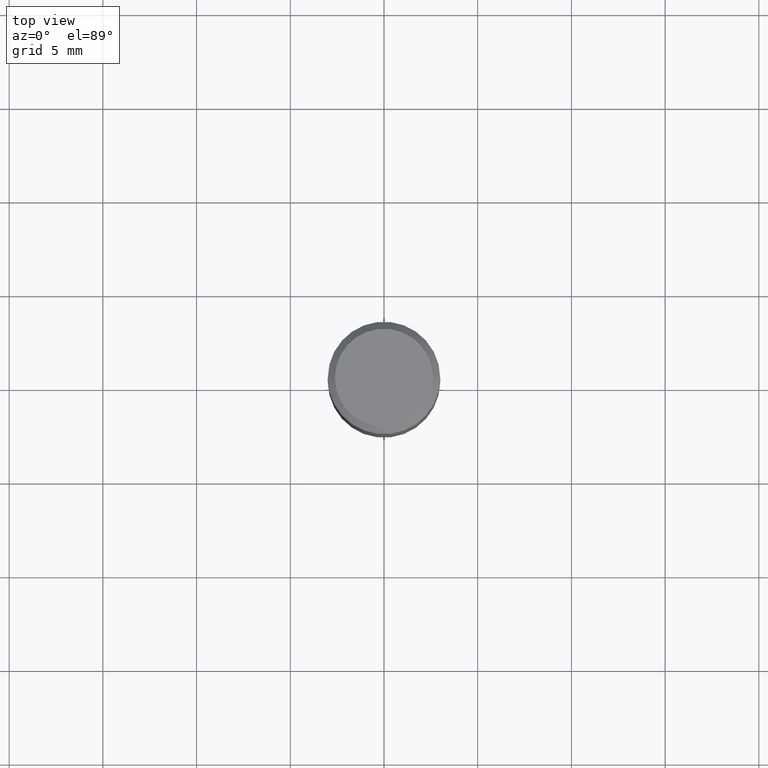
[diagram: clean part render]
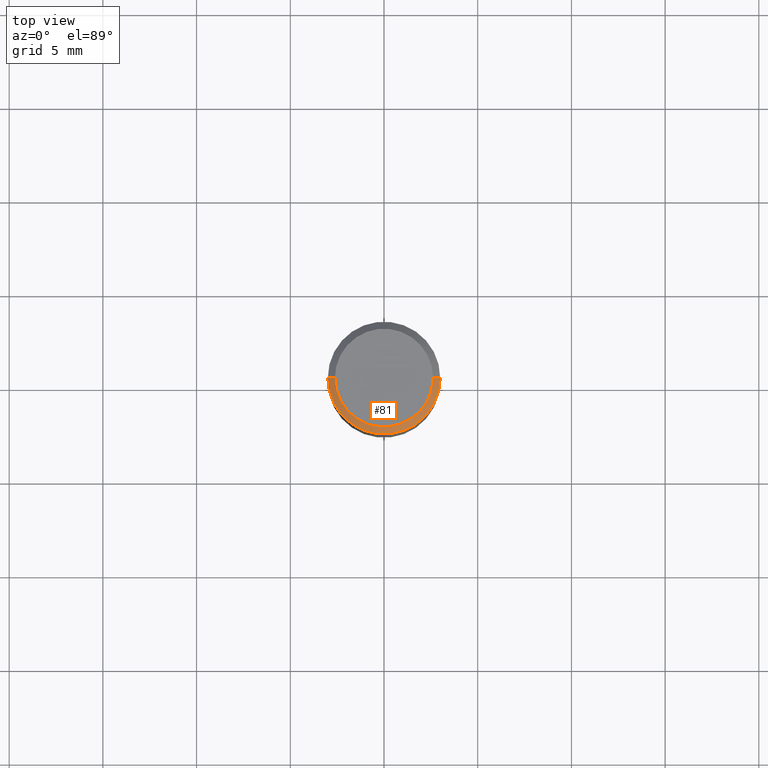
[diagram: same view with one face highlighted and labeled with its STEP entity id]
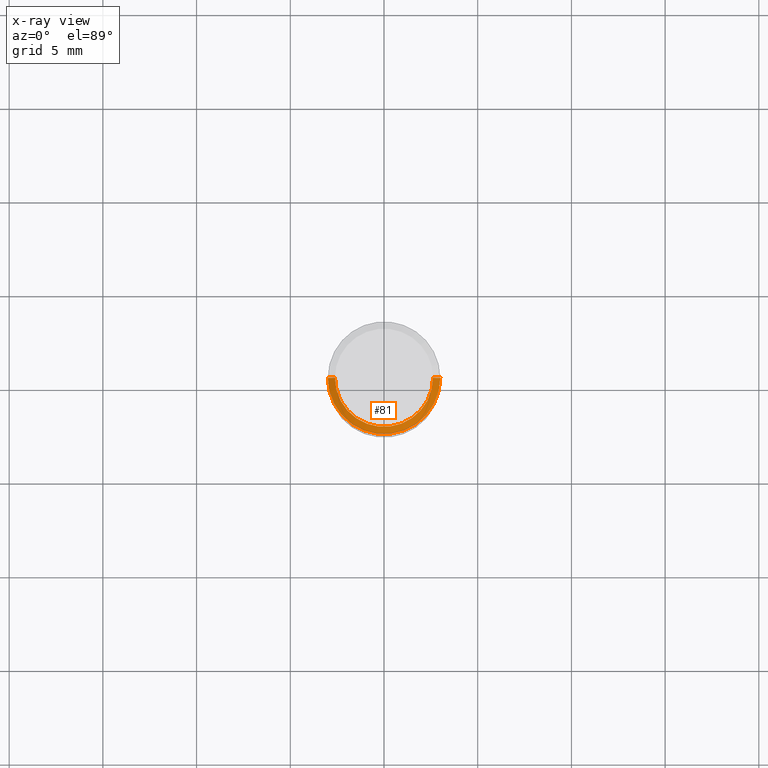
[diagram: x-ray of the same camera — body ghosted, the highlighted face saturated]
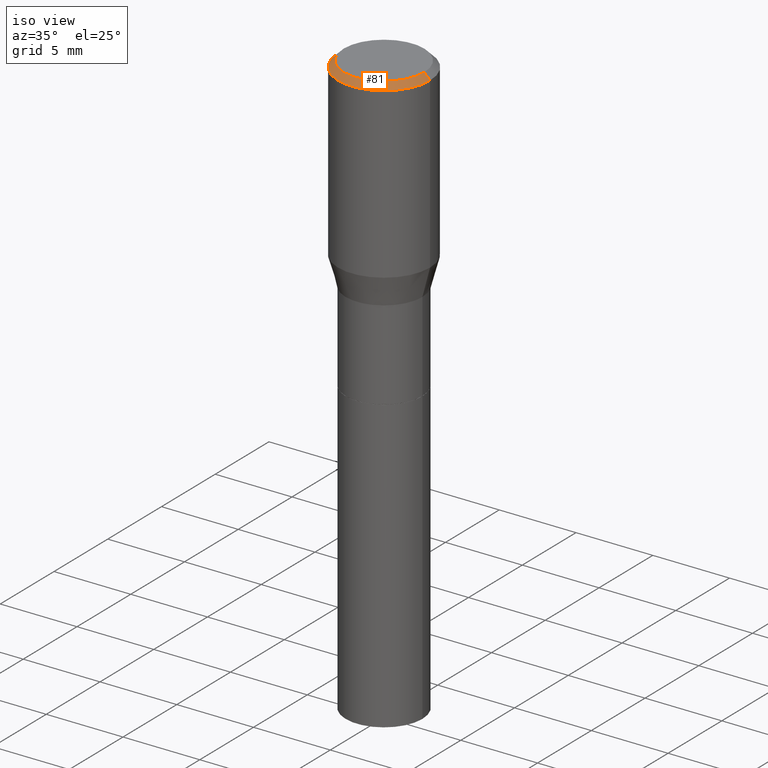
[diagram: same view with one face highlighted and labeled with its STEP entity id]
A machine part, top view. The second image highlights one B-rep face of the part: STEP entity #81.
The next image is the same camera in x-ray: the body ghosted, the highlighted face saturated — about 0% of this face is hidden behind the body in this view.
A second angle (iso view) of the same face is appended — the face is thin or edge-on in the first view.
In plain terms, the highlighted conical surface has half-angle 45 deg.
Its self-contained STEP definition (entity closure, byte-faithful):
#4 = AXIS2_PLACEMENT_3D ( 'NONE', #191, #275, #464 ) ;
#24 = DIRECTION ( 'NONE',  ( -2.445468806185136597E-29, 3.491481338843145583E-15, 1.000000000000000000 ) ) ;
#28 = CARTESIAN_POINT ( 'NONE',  ( -0.1180999999999999966, 2.971177144941290176E-17, -0.01499999999999999944 ) ) ;
#57 = CARTESIAN_POINT ( 'NONE',  ( 0.1180999999999999966, -8.770601123173952432E-16, -0.01499999999999999944 ) ) ;
#59 = DIRECTION ( 'NONE',  ( 1.000000000000000000, -6.982962677686265922E-15, 4.883331232093008327E-29 ) ) ;
#63 = CARTESIAN_POINT ( 'NONE',  ( 0.1180999999999999966, -8.625970336194650129E-16, -0.01499999999999999944 ) ) ;
#81 = ADVANCED_FACE ( 'NONE', ( #225 ), #358, .T. ) ;
#86 = CIRCLE ( 'NONE', #340, 0.1031000000000000111 ) ;
#101 = VERTEX_POINT ( 'NONE', #214 ) ;
#113 = EDGE_CURVE ( 'NONE', #457, #400, #204, .T. ) ;
#137 = VECTOR ( 'NONE', #385, 39.37007874015748143 ) ;
#164 = DIRECTION ( 'NONE',  ( 1.000000000000000000, -6.982962677686266711E-15, 0.000000000000000000 ) ) ;
#182 = CIRCLE ( 'NONE', #444, 0.1180999999999999966 ) ;
#191 = CARTESIAN_POINT ( 'NONE',  ( 3.668203209277705088E-31, -5.237222008264718399E-17, -0.01499999999999999944 ) ) ;
#197 = CARTESIAN_POINT ( 'NONE',  ( -3.565051472193348194E-45, 5.089948665751259239E-31, 1.457819238248526181E-16 ) ) ;
#204 = LINE ( 'NONE', #63, #402 ) ;
#214 = CARTESIAN_POINT ( 'NONE',  ( -0.1031000000000000111, 7.461295621107778410E-16, 1.457819238248475152E-16 ) ) ;
#217 = DIRECTION ( 'NONE',  ( -2.445468806185136597E-29, 3.491481338843145583E-15, 1.000000000000000000 ) ) ;
#222 = EDGE_CURVE ( 'NONE', #101, #457, #86, .T. ) ;
#225 = FACE_OUTER_BOUND ( 'NONE', #465, .T. ) ;
#239 = CARTESIAN_POINT ( 'NONE',  ( -0.1180999999999999966, 7.723156721521009862E-16, -0.01499999999999999944 ) ) ;
#241 = LINE ( 'NONE', #239, #137 ) ;
#248 = DIRECTION ( 'NONE',  ( 0.7071067811865440200, -7.319954787623245001E-15, -0.7071067811865511255 ) ) ;
#254 = CARTESIAN_POINT ( 'NONE',  ( 3.668203209277705088E-31, -5.237222008264718399E-17, -0.01499999999999999944 ) ) ;
#275 = DIRECTION ( 'NONE',  ( 2.445468806185136597E-29, -3.491481338843145583E-15, -1.000000000000000000 ) ) ;
#291 = ORIENTED_EDGE ( 'NONE', *, *, #411, .T. ) ;
#299 = ORIENTED_EDGE ( 'NONE', *, *, #222, .F. ) ;
#315 = ORIENTED_EDGE ( 'NONE', *, *, #362, .T. ) ;
#340 = AXIS2_PLACEMENT_3D ( 'NONE', #197, #24, #59 ) ;
#347 = VERTEX_POINT ( 'NONE', #28 ) ;
#358 = CONICAL_SURFACE ( 'NONE', #4, 0.1180999999999999966, 0.7853981633974432830 ) ;
#362 = EDGE_CURVE ( 'NONE', #101, #347, #241, .T. ) ;
#368 = CARTESIAN_POINT ( 'NONE',  ( 0.1031000000000000111, -7.849571885948547775E-16, 1.457819238248578690E-16 ) ) ;
#385 = DIRECTION ( 'NONE',  ( -0.7071067811865440200, 2.468850131082219590E-15, -0.7071067811865511255 ) ) ;
#400 = VERTEX_POINT ( 'NONE', #57 ) ;
#402 = VECTOR ( 'NONE', #248, 39.37007874015748143 ) ;
#411 = EDGE_CURVE ( 'NONE', #347, #400, #182, .T. ) ;
#428 = ORIENTED_EDGE ( 'NONE', *, *, #113, .F. ) ;
#444 = AXIS2_PLACEMENT_3D ( 'NONE', #254, #217, #164 ) ;
#457 = VERTEX_POINT ( 'NONE', #368 ) ;
#464 = DIRECTION ( 'NONE',  ( -1.000000000000000000, 6.982962677686266711E-15, 0.000000000000000000 ) ) ;
#465 = EDGE_LOOP ( 'NONE', ( #428, #299, #315, #291 ) ) ;